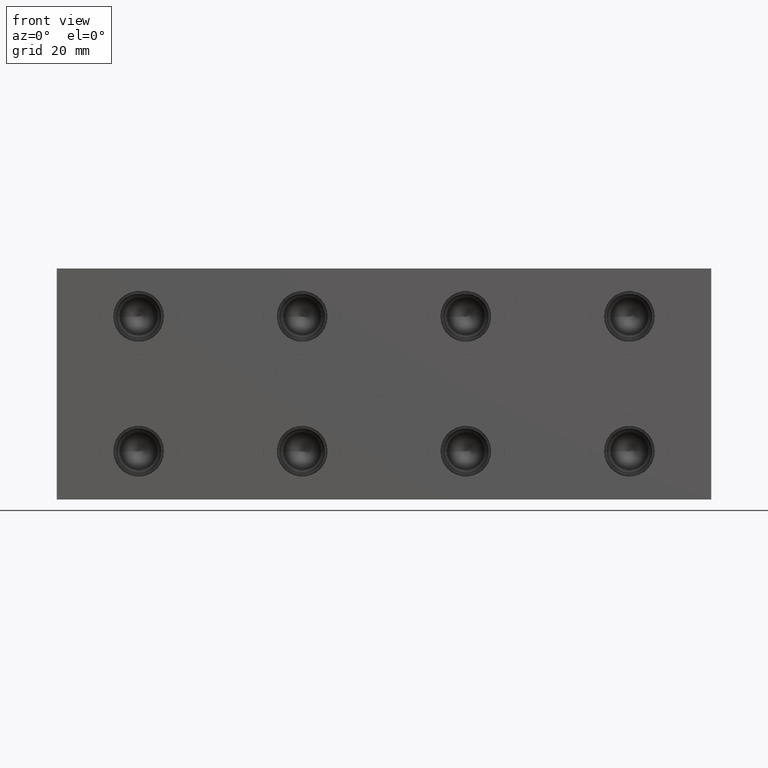
[diagram: clean part render]
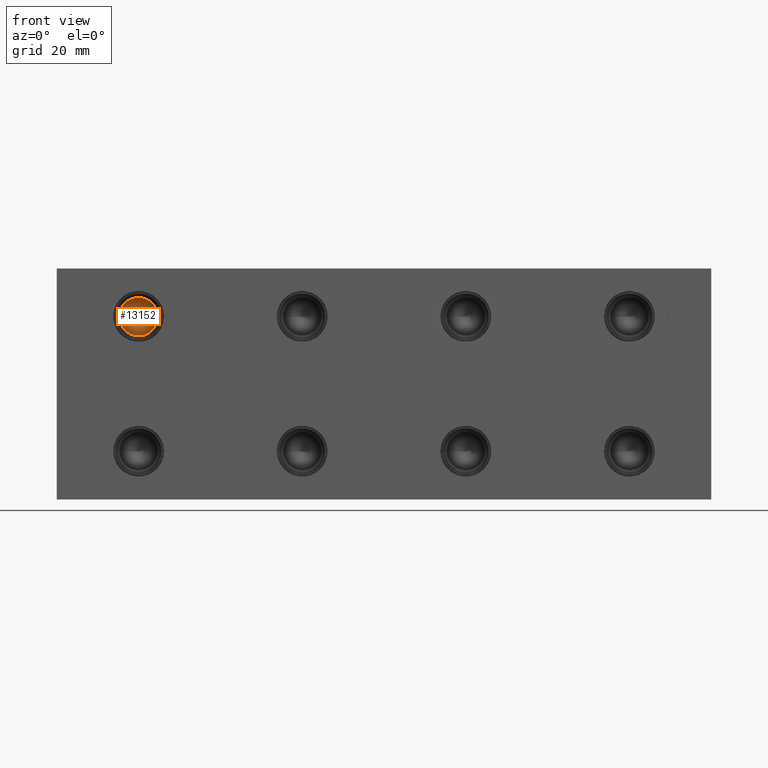
[diagram: same view with one face highlighted and labeled with its STEP entity id]
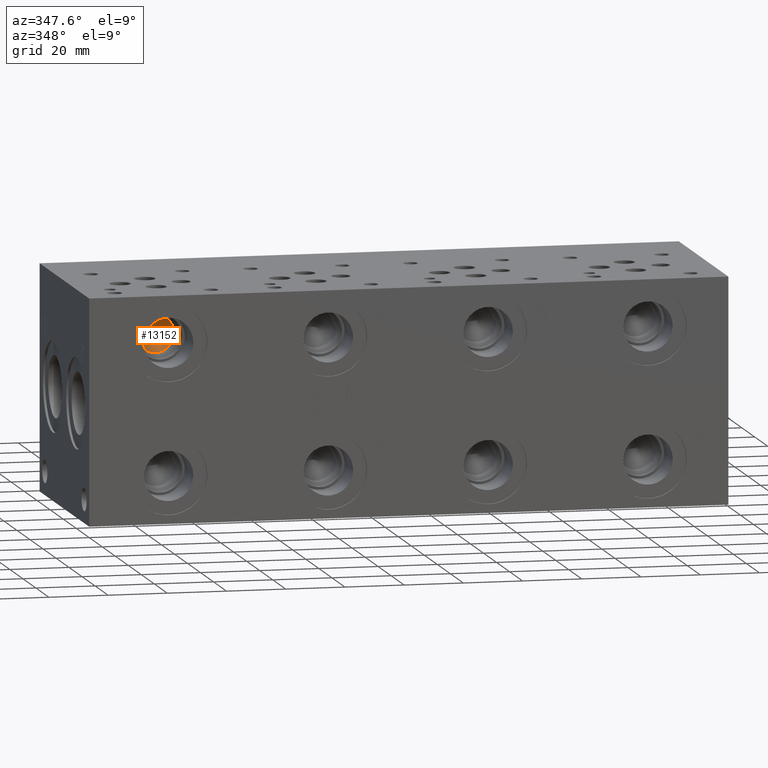
[diagram: same view with one face highlighted and labeled with its STEP entity id]
A machine part, front view. The second image highlights one B-rep face of the part: STEP entity #13152.
A second angle (auxiliary view) of the same face is appended — the face is thin or edge-on in the first view.
In plain terms, the highlighted conical surface has half-angle 60 deg.
Its self-contained STEP definition (entity closure, byte-faithful):
#179=CONICAL_SURFACE('',#13953,6.35,1.04719755230142);
#372=CIRCLE('',#13952,6.35);
#1613=FACE_OUTER_BOUND('',#2445,.T.);
#2445=EDGE_LOOP('',(#11309,#11310,#11311));
#3796=LINE('',#22084,#5078);
#5078=VECTOR('',#16742,6.35);
#6244=VERTEX_POINT('',#22079);
#6245=VERTEX_POINT('',#22083);
#7963=EDGE_CURVE('',#6244,#6244,#372,.T.);
#7964=EDGE_CURVE('',#6244,#6245,#3796,.T.);
#11309=ORIENTED_EDGE('',*,*,#7963,.F.);
#11310=ORIENTED_EDGE('',*,*,#7964,.T.);
#11311=ORIENTED_EDGE('',*,*,#7964,.F.);
#13152=ADVANCED_FACE('',(#1613),#179,.F.);
#13952=AXIS2_PLACEMENT_3D('',#22081,#16738,#16739);
#13953=AXIS2_PLACEMENT_3D('',#22082,#16740,#16741);
#16738=DIRECTION('center_axis',(0.,1.,0.));
#16739=DIRECTION('ref_axis',(1.,0.,0.));
#16740=DIRECTION('center_axis',(0.,-1.,0.));
#16741=DIRECTION('ref_axis',(1.,0.,0.));
#16742=DIRECTION('',(0.866025404336848,0.499999999043199,-1.06057523940141E-16));
#22079=CARTESIAN_POINT('',(20.6248,21.0104826,60.325));
#22081=CARTESIAN_POINT('Origin',(26.9748,21.0104826,60.325));
#22082=CARTESIAN_POINT('Origin',(26.9748,21.0104826,60.325));
#22083=CARTESIAN_POINT('',(26.9748,24.6766568,60.325));
#22084=CARTESIAN_POINT('',(20.6248,21.0104826,60.325));